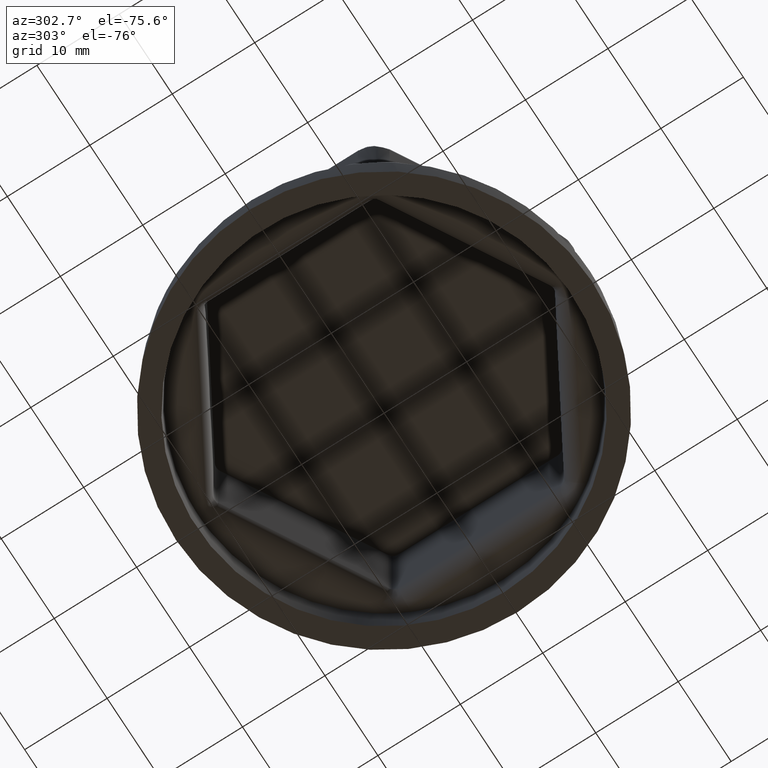
[diagram: clean part render]
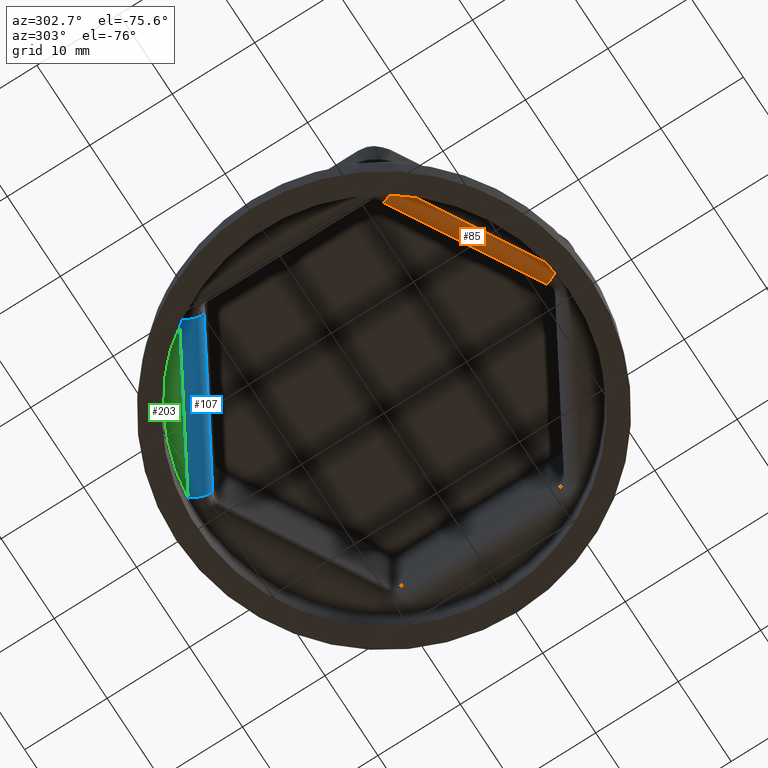
[diagram: same view with three faces highlighted in distinct colors, each labeled with its STEP entity id]
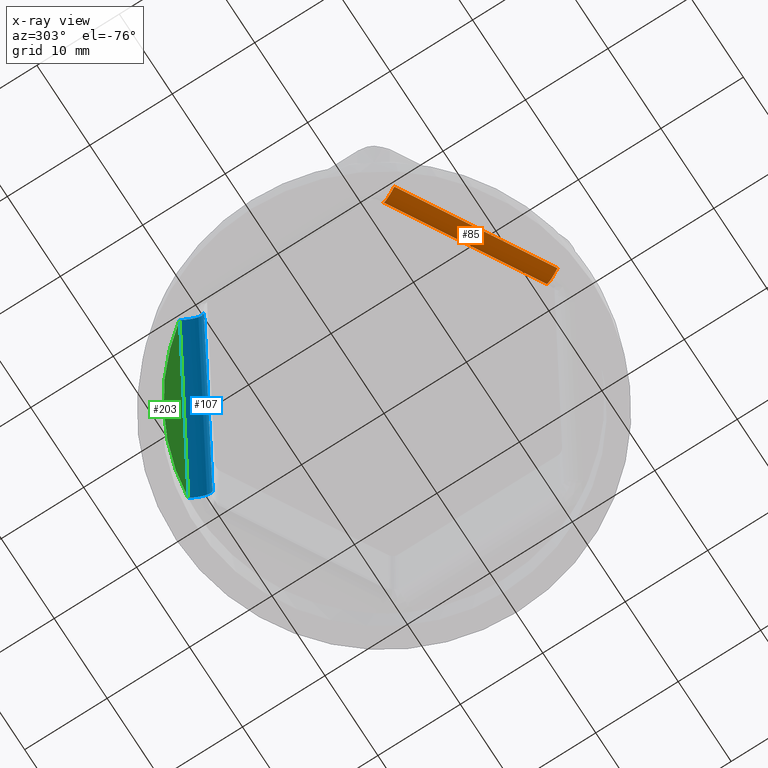
[diagram: x-ray of the same camera — body ghosted, the three highlighted faces saturated]
A machine part, auxiliary view with three faces highlighted in distinct colors.
The next image is the same camera in x-ray (body ghosted, the three faces saturated) — at least one of them is partly hidden behind the body in this view.
Their STEP definitions:

[orange] entity #85 — the highlighted cylindrical surface (edge-blend (fillet) strip) has radius 2.5 mm, axis along (0.866, -0.5, 0).
#85 = ADVANCED_FACE( '', ( #227 ), #228, .T. );
#227 = FACE_OUTER_BOUND( '', #811, .T. );
#228 = CYLINDRICAL_SURFACE( '', #812, 2.50000000000000 );
#811 = EDGE_LOOP( '', ( #5568, #5569, #5570, #5571 ) );
#812 = AXIS2_PLACEMENT_3D( '', #5572, #5573, #5574 );
#5568 = ORIENTED_EDGE( '', *, *, #6301, .F. );
#5569 = ORIENTED_EDGE( '', *, *, #6277, .T. );
#5570 = ORIENTED_EDGE( '', *, *, #6296, .T. );
#5571 = ORIENTED_EDGE( '', *, *, #6302, .T. );
#5572 = CARTESIAN_POINT( '', ( -1.22837157889461, -22.9122116760456, 6.90000000000000 ) );
#5573 = DIRECTION( '', ( 0.866025403784439, -0.500000000000000, 0.000000000000000 ) );
#5574 = DIRECTION( '', ( -0.500000000000000, -0.866025403784439, 0.000000000000000 ) );
#6277 = EDGE_CURVE( '', #6609, #6607, #6610, .T. );
#6296 = EDGE_CURVE( '', #6607, #6641, #6642, .T. );
#6301 = EDGE_CURVE( '', #6609, #6648, #6649, .T. );
#6302 = EDGE_CURVE( '', #6641, #6648, #6650, .T. );
#6607 = VERTEX_POINT( '', #7234 );
#6609 = VERTEX_POINT( '', #7239 );
#6610 = LINE( '', #7240, #7241 );
#6641 = VERTEX_POINT( '', #7324 );
#6642 = CIRCLE( '', #7325, 2.50000000000000 );
#6648 = VERTEX_POINT( '', #7362 );
#6649 = CIRCLE( '', #7363, 2.50000000000000 );
#6650 = LINE( '', #7364, #7365 );
#7234 = CARTESIAN_POINT( '', ( -0.865070446908459, -20.2356520026589, 6.85636898390679 ) );
#7239 = CARTESIAN_POINT( '', ( -17.0920534729898, -10.8669989844153, 6.85636898390679 ) );
#7240 = CARTESIAN_POINT( '', ( 0.0214380400508764, -20.7474779162437, 6.85636898390679 ) );
#7241 = VECTOR( '', #9431, 1000.00000000000 );
#7324 = CARTESIAN_POINT( '', ( -2.11488006585394, -22.4003857624607, 4.40000000000000 ) );
#7325 = AXIS2_PLACEMENT_3D( '', #9456, #9457, #9458 );
#7362 = CARTESIAN_POINT( '', ( -18.3418630919353, -13.0317327442172, 4.40000000000000 ) );
#7363 = AXIS2_PLACEMENT_3D( '', #9468, #9469, #9470 );
#7364 = CARTESIAN_POINT( '', ( -10.2283715788946, -17.7160592533390, 4.40000000000000 ) );
#7365 = VECTOR( '', #9471, 1000.00000000000 );
#9431 = DIRECTION( '', ( 0.866025403784439, -0.500000000000000, 1.01705641888732E-019 ) );
#9456 = CARTESIAN_POINT( '', ( -2.11488006585395, -22.4003857624607, 6.90000000000000 ) );
#9457 = DIRECTION( '', ( -0.866025403784439, 0.500000000000000, 2.57318385627720E-016 ) );
#9458 = DIRECTION( '', ( -0.500000000000000, -0.866025403784439, 0.000000000000000 ) );
#9468 = CARTESIAN_POINT( '', ( -18.3418630919353, -13.0317327442172, 6.90000000000000 ) );
#9469 = DIRECTION( '', ( -0.866025403784439, 0.500000000000000, -4.43555251237547E-015 ) );
#9470 = DIRECTION( '', ( -0.500000000000000, -0.866025403784439, 0.000000000000000 ) );
#9471 = DIRECTION( '', ( -0.866025403784439, 0.500000000000000, 0.000000000000000 ) );

[blue] entity #107 — the highlighted cylindrical surface (edge-blend (fillet) strip) has radius 2.5 mm, axis along (-0.866, -0.5, 0).
#107 = ADVANCED_FACE( '', ( #271 ), #272, .T. );
#271 = FACE_OUTER_BOUND( '', #1551, .T. );
#272 = CYLINDRICAL_SURFACE( '', #1552, 2.50000000000000 );
#1551 = EDGE_LOOP( '', ( #5692, #5693, #5694, #5695 ) );
#1552 = AXIS2_PLACEMENT_3D( '', #5696, #5697, #5698 );
#5692 = ORIENTED_EDGE( '', *, *, #6350, .F. );
#5693 = ORIENTED_EDGE( '', *, *, #6348, .T. );
#5694 = ORIENTED_EDGE( '', *, *, #6341, .T. );
#5695 = ORIENTED_EDGE( '', *, *, #6351, .T. );
#5696 = CARTESIAN_POINT( '', ( 7.77162842110538, 28.1083640987522, 6.90000000000000 ) );
#5697 = DIRECTION( '', ( -0.866025403784439, -0.500000000000000, 0.000000000000000 ) );
#5698 = DIRECTION( '', ( -0.500000000000000, 0.866025403784439, 0.000000000000000 ) );
#6341 = EDGE_CURVE( '', #6710, #6711, #6712, .T. );
#6348 = EDGE_CURVE( '', #6721, #6710, #6722, .T. );
#6350 = EDGE_CURVE( '', #6721, #6724, #6725, .T. );
#6351 = EDGE_CURVE( '', #6711, #6724, #6726, .T. );
#6710 = VERTEX_POINT( '', #7508 );
#6711 = VERTEX_POINT( '', #7509 );
#6712 = CIRCLE( '', #7510, 2.50000000000000 );
#6721 = VERTEX_POINT( '', #7554 );
#6722 = LINE( '', #7555, #7556 );
#6724 = VERTEX_POINT( '', #7561 );
#6725 = CIRCLE( '', #7562, 2.50000000000000 );
#6726 = LINE( '', #7563, #7564 );
#7508 = CARTESIAN_POINT( '', ( -17.0920534729898, 10.8669989844153, 6.85636898390679 ) );
#7509 = CARTESIAN_POINT( '', ( -18.3418630919353, 13.0317327442172, 4.40000000000000 ) );
#7510 = AXIS2_PLACEMENT_3D( '', #9550, #9551, #9552 );
#7554 = CARTESIAN_POINT( '', ( -0.865070446908480, 20.2356520026588, 6.85636898390679 ) );
#7555 = CARTESIAN_POINT( '', ( 9.02143804005087, 25.9436303389503, 6.85636898390679 ) );
#7556 = VECTOR( '', #9563, 1000.00000000000 );
#7561 = CARTESIAN_POINT( '', ( -2.11488006585396, 22.4003857624607, 4.40000000000000 ) );
#7562 = AXIS2_PLACEMENT_3D( '', #9564, #9565, #9566 );
#7563 = CARTESIAN_POINT( '', ( -10.2283715788946, 17.7160592533390, 4.40000000000000 ) );
#7564 = VECTOR( '', #9567, 1000.00000000000 );
#9550 = CARTESIAN_POINT( '', ( -18.3418630919353, 13.0317327442172, 6.90000000000000 ) );
#9551 = DIRECTION( '', ( 0.866025403784439, 0.500000000000000, 6.68979882002647E-016 ) );
#9552 = DIRECTION( '', ( -0.500000000000000, 0.866025403784439, 0.000000000000000 ) );
#9563 = DIRECTION( '', ( -0.866025403784439, -0.500000000000000, -9.69067379877136E-019 ) );
#9564 = CARTESIAN_POINT( '', ( -2.11488006585397, 22.4003857624607, 6.90000000000000 ) );
#9565 = DIRECTION( '', ( 0.866025403784439, 0.500000000000000, -2.32486318194174E-015 ) );
#9566 = DIRECTION( '', ( -0.500000000000000, 0.866025403784439, 0.000000000000000 ) );
#9567 = DIRECTION( '', ( 0.866025403784439, 0.500000000000000, 0.000000000000000 ) );

[green] entity #203 — the highlighted planar face has unit normal (0, 0, 1).
#203 = ADVANCED_FACE( '', ( #466 ), #467, .F. );
#466 = FACE_OUTER_BOUND( '', #5489, .T. );
#467 = PLANE( '', #5490 );
#5489 = EDGE_LOOP( '', ( #6237, #6238 ) );
#5490 = AXIS2_PLACEMENT_3D( '', #6239, #6240, #6241 );
#6237 = ORIENTED_EDGE( '', *, *, #6355, .F. );
#6238 = ORIENTED_EDGE( '', *, *, #6351, .F. );
#6239 = CARTESIAN_POINT( '', ( 0.000000000000000, 0.000000000000000, 4.40000000000000 ) );
#6240 = DIRECTION( '', ( 0.000000000000000, 0.000000000000000, 1.00000000000000 ) );
#6241 = DIRECTION( '', ( 1.00000000000000, 0.000000000000000, 0.000000000000000 ) );
#6351 = EDGE_CURVE( '', #6711, #6724, #6726, .T. );
#6355 = EDGE_CURVE( '', #6724, #6711, #6731, .T. );
#6711 = VERTEX_POINT( '', #7509 );
#6724 = VERTEX_POINT( '', #7561 );
#6726 = LINE( '', #7563, #7564 );
#6731 = CIRCLE( '', #7569, 22.5000000000000 );
#7509 = CARTESIAN_POINT( '', ( -18.3418630919353, 13.0317327442172, 4.40000000000000 ) );
#7561 = CARTESIAN_POINT( '', ( -2.11488006585396, 22.4003857624607, 4.40000000000000 ) );
#7563 = CARTESIAN_POINT( '', ( -10.2283715788946, 17.7160592533390, 4.40000000000000 ) );
#7564 = VECTOR( '', #9567, 1000.00000000000 );
#7569 = AXIS2_PLACEMENT_3D( '', #9577, #9578, #9579 );
#9567 = DIRECTION( '', ( 0.866025403784439, 0.500000000000000, 0.000000000000000 ) );
#9577 = CARTESIAN_POINT( '', ( 0.000000000000000, 0.000000000000000, 4.40000000000000 ) );
#9578 = DIRECTION( '', ( 0.000000000000000, 0.000000000000000, 1.00000000000000 ) );
#9579 = DIRECTION( '', ( 1.00000000000000, 0.000000000000000, 0.000000000000000 ) );